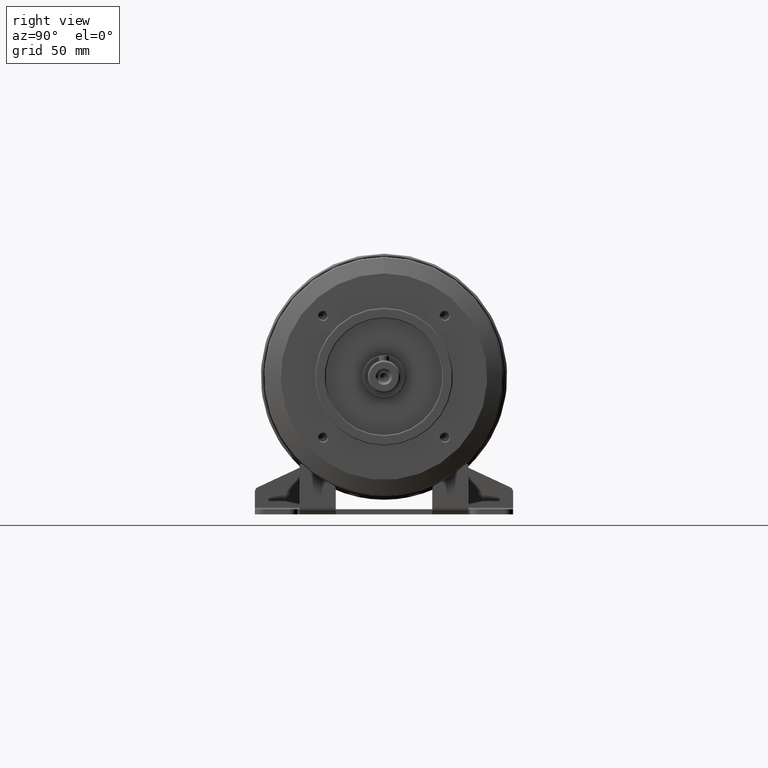
[diagram: clean part render]
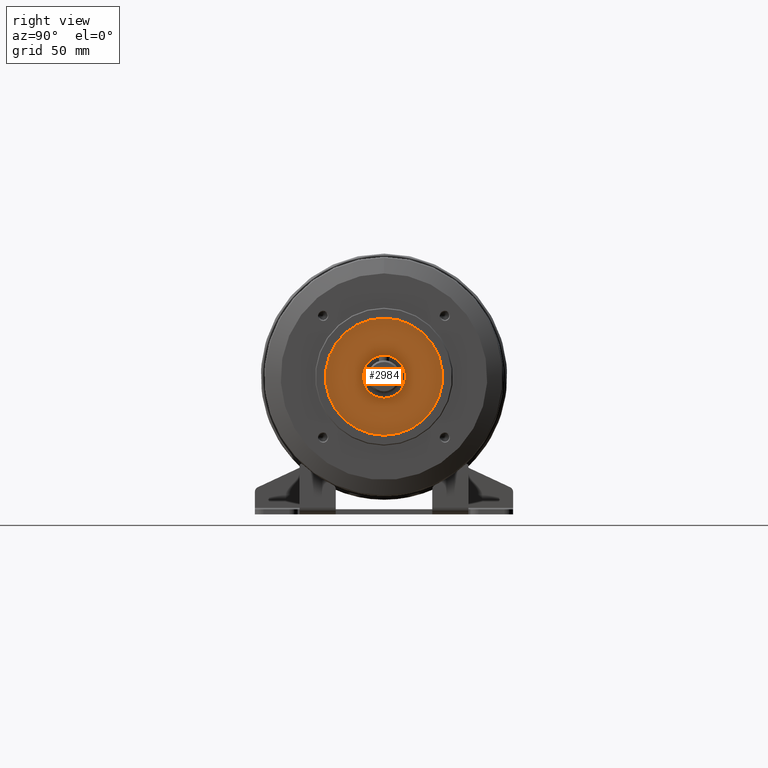
[diagram: same view with one face highlighted and labeled with its STEP entity id]
A machine part, right view. The second image highlights one B-rep face of the part: STEP entity #2984.
In plain terms, the highlighted planar face has unit normal (1, 0, 0).
Its self-contained STEP definition (entity closure, byte-faithful):
#48=PLANE('',#3200);
#565=ORIENTED_EDGE('',*,*,#1175,.T.);
#566=ORIENTED_EDGE('',*,*,#1174,.F.);
#1174=EDGE_CURVE('',#1478,#1478,#1697,.T.);
#1175=EDGE_CURVE('',#1479,#1479,#1698,.T.);
#1478=VERTEX_POINT('',#4455);
#1479=VERTEX_POINT('',#4458);
#1697=CIRCLE('',#3199,34.);
#1698=CIRCLE('',#3201,12.5);
#1854=EDGE_LOOP('',(#565));
#1855=EDGE_LOOP('',(#566));
#2086=FACE_BOUND('',#1854,.T.);
#2087=FACE_BOUND('',#1855,.T.);
#2984=ADVANCED_FACE('',(#2086,#2087),#48,.T.);
#3199=AXIS2_PLACEMENT_3D('',#4454,#3609,#3610);
#3200=AXIS2_PLACEMENT_3D('',#4456,#3611,#3612);
#3201=AXIS2_PLACEMENT_3D('',#4457,#3613,#3614);
#3609=DIRECTION('',(-1.,0.,0.));
#3610=DIRECTION('',(0.,0.,1.));
#3611=DIRECTION('',(1.,0.,0.));
#3612=DIRECTION('',(0.,0.,-1.));
#3613=DIRECTION('',(-1.,0.,0.));
#3614=DIRECTION('',(0.,0.,1.));
#4454=CARTESIAN_POINT('',(-6.00000000000001,0.,0.));
#4455=CARTESIAN_POINT('',(-6.00000000000001,0.,34.));
#4456=CARTESIAN_POINT('',(-6.,0.,34.));
#4457=CARTESIAN_POINT('',(-6.00000000000001,0.,0.));
#4458=CARTESIAN_POINT('',(-6.00000000000001,0.,12.5));